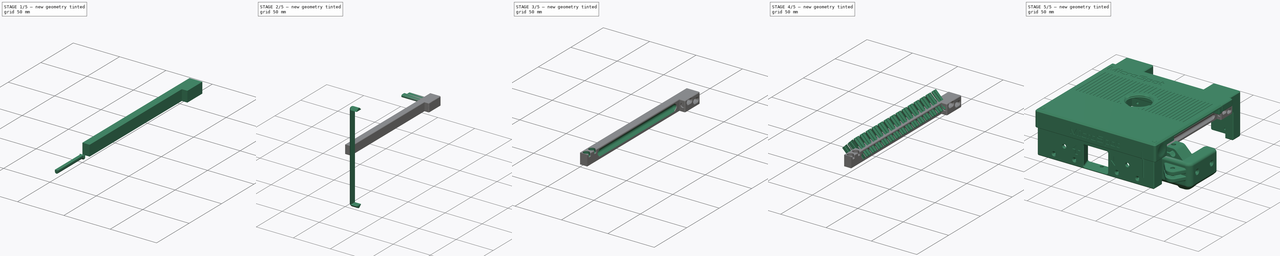
[diagram: build sequence overview — one tinted view per stage of 5, left to right]
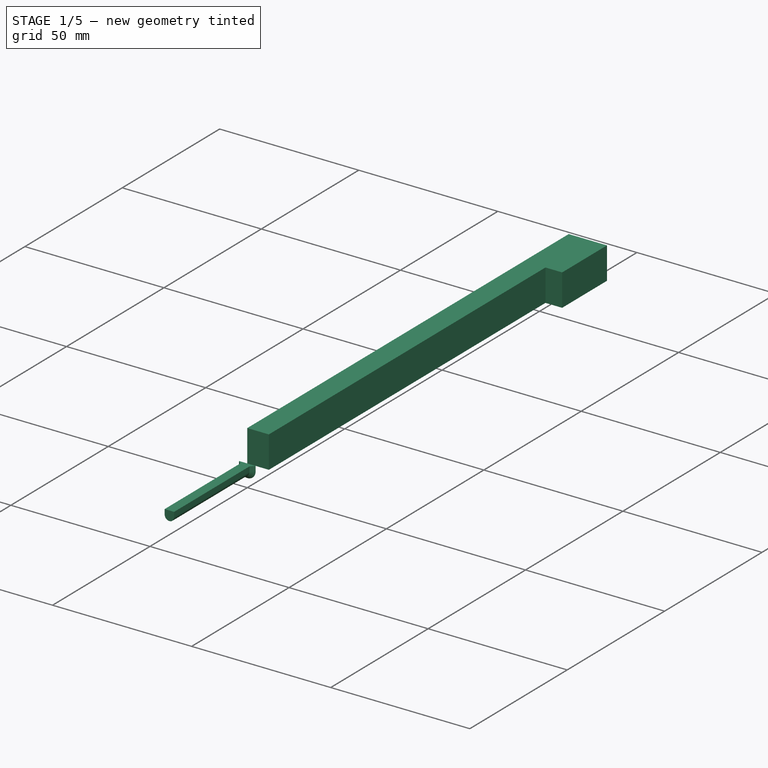
[diagram: stage 1 of 5 — iso view after this stage's code; geometry added in this stage tinted green]
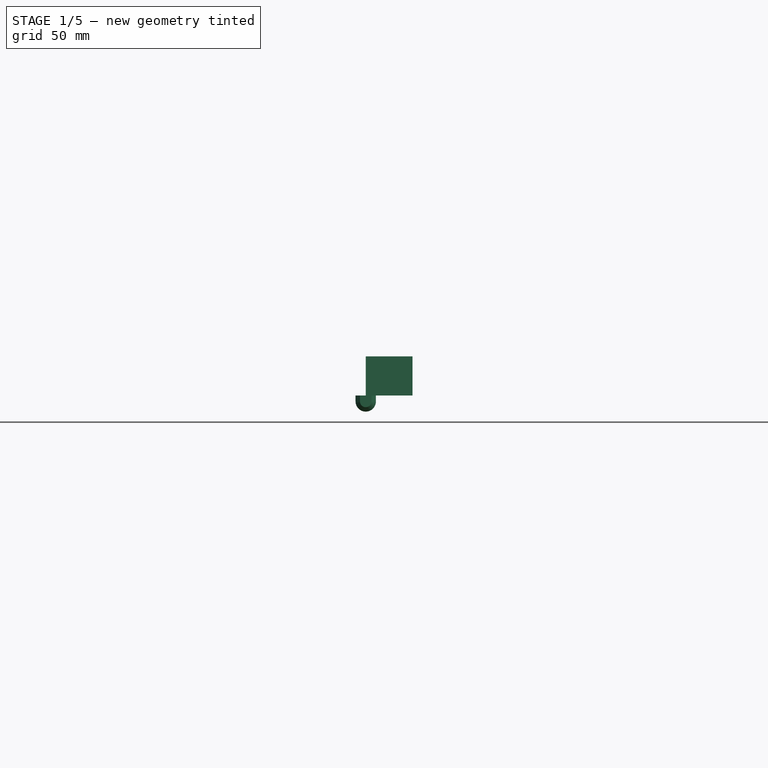
[diagram: stage 1 of 5 — front view after this stage's code; geometry added in this stage tinted green]
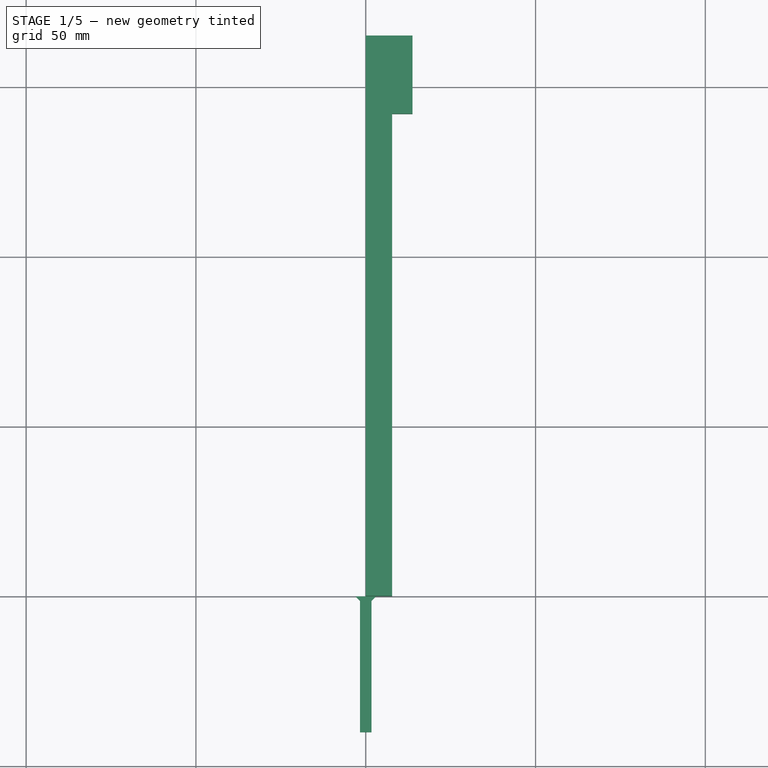
[diagram: stage 1 of 5 — top view after this stage's code; geometry added in this stage tinted green]
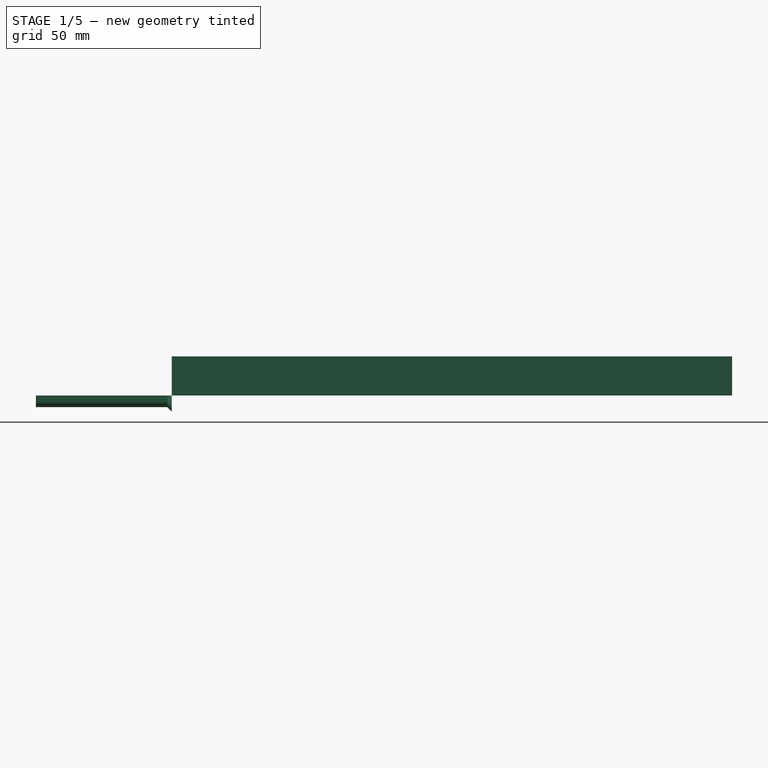
[diagram: stage 1 of 5 — right view after this stage's code; geometry added in this stage tinted green]
FCSTD DOCUMENT  (FreeCAD 0.16RUnknown)
Label: DrawerGuide
License: All rights reserved
LicenseURL: http://en.wikipedia.org/wiki/All_rights_reserved
objects: Part::FeaturePython×19, Sketcher::SketchObject×12, PartDesign::Pad×9, Part::Cut×7, App::DocumentObjectGroup×5, Part::Fillet×4, Part::Mirroring×4, Part::MultiFuse×4, PartDesign::Revolution×2, Spreadsheet::Sheet×1, Part::Sweep×1, Part::Box×1, Part::Compound×1, Part::MultiCommon×1, Part::Part2DObjectPython×1
note: 77 computed .brp shape members not serialized (recipe doc carries the construction recipe); baked Part::Feature solids carry a one-line shape summary decoded from their .brp

FEATURE [Sketcher::SketchObject] Sketch015  label="Base"
  Placement = pos=(0,0,0) rot=(0.57735,0.57735,0.57735;2.0944rad)
  expr: Constraints.RailLen = 166 - pars.ForwClear
  expr: Constraints.RailHeight = 12 - pars.UDSpace
  sketch-geometry (4):
    g0: LineSegment StartX=0 StartY=0 StartZ=0 EndX=0 EndY=11.5 EndZ=0
    g1: LineSegment StartX=0 StartY=11.5 StartZ=0 EndX=165 EndY=11.5 EndZ=0
    g2: LineSegment StartX=165 StartY=11.5 StartZ=0 EndX=165 EndY=0 EndZ=0
    g3: LineSegment StartX=165 StartY=0 StartZ=0 EndX=0 EndY=0 EndZ=0
  constraints (11):
    c: Coincident(g0,g1)
    c: Coincident(g2,g3)
    c: Coincident(g0,g3)
    c: Coincident(g0,g-1)
    c: Vertical(g0)
    c: Vertical(g2)
    c: Horizontal(g3)
    c: DistanceY(g0,g0) = 11.5
    c: DistanceX(g3,g3) = 165  'RailLen'
    c: Coincident(g1,g2)
    c: DistanceY(g2,g2) = 11.5  'RailHeight'
FEATURE [PartDesign::Pad] Pad007  label="Base001"
  Length = 7.75
  Length2 = 100
  Placement = pos=(0,0,0) rot=(0.57735,0.57735,0.57735;2.0944rad)
  Sketch = -> Sketch015
  Type = 0
  expr: Length = 8 - pars.RailClear
FEATURE [Sketcher::SketchObject] Sketch016  label="M3DIN7991SlotSection"
  expr: Constraints[11] = 1.5 + pars.PreBoltTol
  sketch-geometry (5):
    g0: LineSegment StartX=0 StartY=0 StartZ=0 EndX=3 EndY=0 EndZ=0
    g1: LineSegment StartX=3 StartY=0 StartZ=0 EndX=1.7 EndY=-1.3 EndZ=0
    g2: LineSegment StartX=1.7 StartY=-1.3 StartZ=0 EndX=1.7 EndY=-40 EndZ=0
    g3: LineSegment StartX=1.7 StartY=-40 StartZ=0 EndX=0 EndY=-40 EndZ=0
    g4: LineSegment StartX=0 StartY=-40 StartZ=0 EndX=0 EndY=0 EndZ=0
  constraints (14):
    c: Coincident(g0,g1)
    c: Coincident(g1,g2)
    c: Coincident(g2,g3)
    c: Coincident(g3,g4)
    c: Coincident(g0,g4)
    c: Coincident(g0,g-1)
    c: Vertical(g4)
    c: Vertical(g2)
    c: Horizontal(g0)
    c: Horizontal(g3)
    c: Angle(g0,g1) = 0.785398
    c: DistanceX(g3,g3) = 1.7
    c: DistanceX(g0,g0) = 3
    c: DistanceY(g4,g4) = 40
FEATURE [PartDesign::Pad] Pad008  label="M3DIN7991Slot"
  Length = 1.75
  Length2 = 100
  Sketch = -> Sketch016
  Type = 0
  expr: Length = pars.PreWidth / 2
FEATURE [Part::Part2DObjectPython] Clone2D  label="Clone of M3DIN7991SlotSection (2D)"  # Draft 2D object (typed FeaturePython)
  Objects = -> [Sketch016]
  Placement = pos=(0,0,1.75) rot=(0,0,1;0rad)
  Scale = (1,1,1)
  expr: Placement.Base.z = pars.PreWidth / 2
FEATURE [PartDesign::Revolution] Revolution001  label="M3DIN7991Slot001"
  Angle = 90
  Axis = (0,1,0)
  Base = (0,0,1.75)
  Placement = pos=(0,0,1.75) rot=(0,0,1;0rad)
  ReferenceAxis = -> Clone2D [V_Axis]
  Reversed = true
  Sketch = -> Clone2D
FEATURE [Part::MultiFuse] Fusion001  label="SlotQuarter"
  Shapes = -> [Pad008,Revolution001]
FEATURE [Part::Mirroring] Part__Mirroring002  label="SlotQuarter (Mirror #3)"
  Base = (0,0,0)
  Normal = (1,0,0)
  Source = -> Fusion001
FEATURE [Part::MultiFuse] Fusion002
  Shapes = -> [Fusion001,Part__Mirroring002]
FEATURE [Part::Mirroring] Part__Mirroring003  label="Fusion002 (Mirror #4)"
  Base = (0,0,0)
  Normal = (0,0,1)
  Source = -> Fusion002
FEATURE [Sketcher::SketchObject] Sketch  label="MagnetHolder"
  Placement = pos=(7.75,0,0) rot=(0.57735,0.57735,0.57735;2.0944rad)
  Support = -> Pad007 [Face6]
  expr: Constraints[10] = Base.Constraints.RailLen
  expr: Constraints[9] = Base.Constraints.RailHeight
  sketch-geometry (4):
    g0: LineSegment StartX=142 StartY=11.5 StartZ=0 EndX=165 EndY=11.5 EndZ=0
    g1: LineSegment StartX=165 StartY=11.5 StartZ=0 EndX=165 EndY=0 EndZ=0
    g2: LineSegment StartX=165 StartY=0 StartZ=0 EndX=142 EndY=0 EndZ=0
    g3: LineSegment StartX=142 StartY=0 StartZ=0 EndX=142 EndY=11.5 EndZ=0
  constraints (12):
    c: Coincident(g0,g1)
    c: Coincident(g1,g2)
    c: Coincident(g2,g3)
    c: Coincident(g3,g0)
    c: Horizontal(g0)
    c: Horizontal(g2)
    c: Vertical(g1)
    c: Vertical(g3)
    c: PointOnObject(g2,g-1)
    c: DistanceY(g1,g1) = 11.5
    c: DistanceX(g0) = 165
    c: DistanceX(g0) = 142
FEATURE [PartDesign::Pad] Pad  label="MagnetHolder001"
  Length = 6
  Length2 = 100
  Placement = pos=(0,0,0) rot=(0.57735,0.57735,0.57735;2.0944rad)
  Sketch = -> Sketch
  Type = 0
FEATURE [Part::FeaturePython] refine002  label="refine_MagnetHolder001"  # WARN: FeaturePython — macro-defined, semantics opaque (R4)
  Base = -> Pad
FEATURE [Sketcher::SketchObject] Sketch019  label="MagnetSlot"
  expr: Constraints[11] = pars.MagnetDia / 2
  sketch-geometry (4):
    g0: ArcOfCircle CenterX=0 CenterY=0 CenterZ=0 NormalX=0 NormalY=0 NormalZ=1 Radius=2.25 StartAngle=2.3562 EndAngle=7.06858
    g1: LineSegment StartX=-1.591 StartY=1.59098 StartZ=0 EndX=-0.931981 EndY=2.25 EndZ=0
    g2: LineSegment StartX=-0.931981 StartY=2.25 StartZ=0 EndX=0.931981 EndY=2.25 EndZ=0
    g3: LineSegment StartX=0.931981 StartY=2.25 StartZ=0 EndX=1.591 EndY=1.59098 EndZ=0
  constraints (12):
    c: Coincident(g1,g2)
    c: Coincident(g2,g3)
    c: Coincident(g1,g0)
    c: Coincident(g3,g0)
    c: Horizontal(g2)
    c: Perpendicular(g3,g1)
    c: Tangent(g3,g0)
    c: Tangent(g1,g0)
    c: Angle(g1,g2) = 2.35619
    c: Coincident(g0,g-1)
    c: Tangent(g0,g2)
    c: Radius(g0) = 2.25
FEATURE [PartDesign::Pad] Pad009  label="MagnetSlot001"
  Length = 1.4
  Length2 = 100
  Sketch = -> Sketch019
  Type = 0
  expr: Length = pars.MagTol + 1
FEATURE [App::DocumentObjectGroup] Group002  label="Component_src"
  Group = -> [Revolution,Pad001,Pad002,Pad003,Pad006,Fusion003,refine001,Pad009]
FEATURE [Part::FeaturePython] Clone017  label="Clone of MagnetSlot001"  # Draft clone (typed FeaturePython)
  Objects = -> [Pad009]
  Placement = pos=(11,142,6) rot=(0,0.707107,0.707107;3.14159rad)
  Scale = (1,1,1)
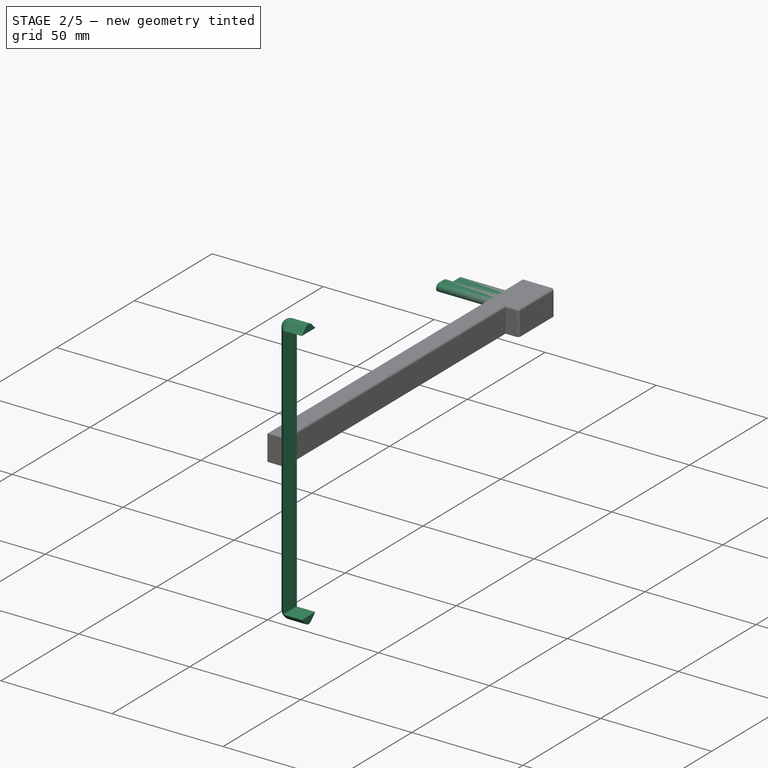
[diagram: stage 2 of 5 — iso view after this stage's code; geometry added in this stage tinted green]
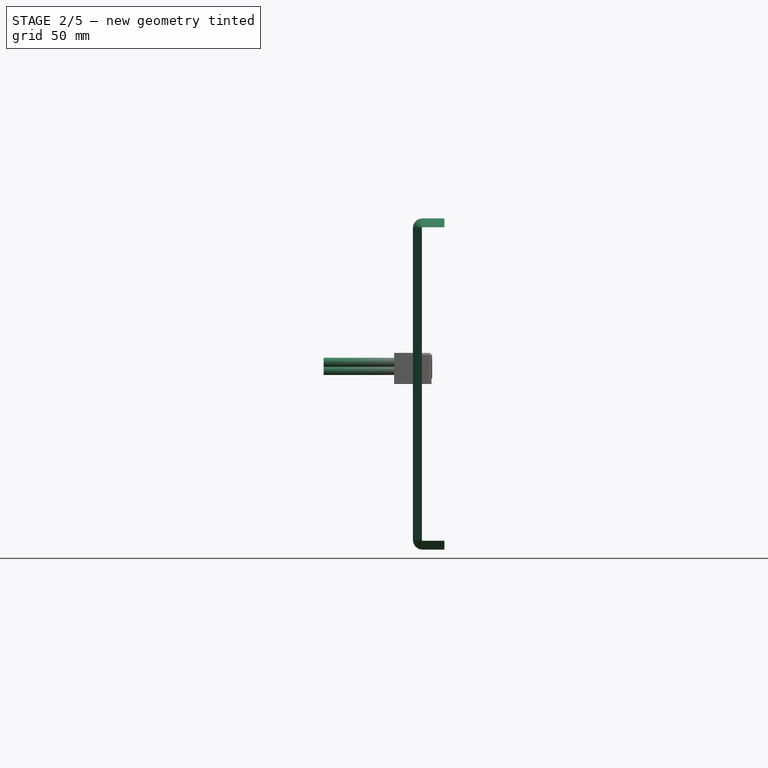
[diagram: stage 2 of 5 — front view after this stage's code; geometry added in this stage tinted green]
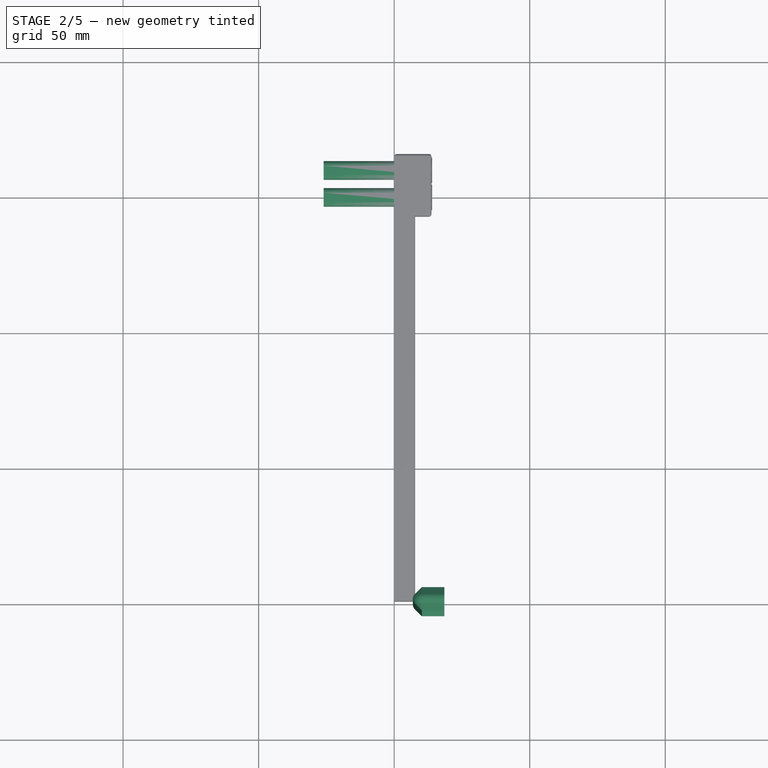
[diagram: stage 2 of 5 — top view after this stage's code; geometry added in this stage tinted green]
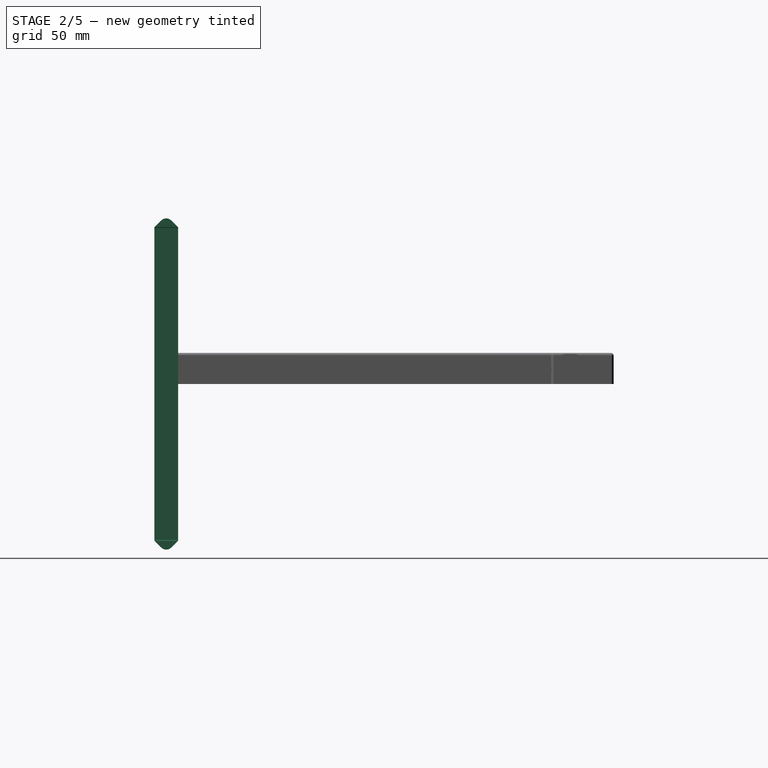
[diagram: stage 2 of 5 — right view after this stage's code; geometry added in this stage tinted green]
FEATURE [Sketcher::SketchObject] Sketch005  label="RailPath"
  Placement = pos=(0,0,0) rot=(1,0,0;1.5708rad)
  expr: Constraints[9] = pars.RailLen / 2
  sketch-geometry (3):
    g0: LineSegment StartX=6.5 StartY=0 StartZ=0 EndX=6.5 EndY=57.5 EndZ=0
    g1: ArcOfCircle CenterX=10.5 CenterY=57.5 CenterZ=0 NormalX=0 NormalY=0 NormalZ=1 Radius=4 StartAngle=1.5708 EndAngle=3.1416
    g2: LineSegment StartX=10.5 StartY=61.5 StartZ=0 EndX=18.5 EndY=61.5 EndZ=0
  constraints (11):
    c: Coincident(g1,g0)
    c: Tangent(g1,g0)
    c: Vertical(g0)
    c: PointOnObject(g0,g-1)
    c: Horizontal(g2)
    c: Coincident(g2,g1)
    c: Tangent(g2,g1)
    c: DistanceX(g1) = 10.5
    c: DistanceX(g2,g2) = 8
    c: DistanceY(g0,g0) = 57.5
    c: Radius(g1) = 4
FEATURE [Sketcher::SketchObject] Sketch011  label="RailSection"
  expr: Constraints[6] = pars.BallShapeTol + 3
  sketch-geometry (4):
    g0: Circle [constr] CenterX=10 CenterY=-2.5e-11 CenterZ=0 NormalX=0 NormalY=0 NormalZ=1 Radius=2.946
    g1: LineSegment StartX=10.2 StartY=4.36627 StartZ=0 EndX=5.83373 EndY=0 EndZ=0
    g2: LineSegment StartX=5.83373 StartY=0 StartZ=0 EndX=10.2 EndY=-4.36627 EndZ=0
    g3: LineSegment StartX=10.2 StartY=-4.36627 StartZ=0 EndX=10.2 EndY=4.36627 EndZ=0
  constraints (12):
    c: Coincident(g1,g2)
    c: Coincident(g2,g3)
    c: Coincident(g1,g3)
    c: Vertical(g3)
    c: Perpendicular(g2,g1)
    c: Angle(g1) = -2.35619
    c: Radius(g0) = 2.946
    c: Tangent(g1,g0)
    c: Tangent(g0,g2)
    c: DistanceX(g0) = 10
    c: DistanceX(g1) = 10.2
    c: PointOnObject(g1,g-1)
FEATURE [Part::Sweep] Sweep  label="RailSweep"
  Frenet = false
  Sections = -> [Sketch011]
  Solid = true
  Spine = -> Sketch005 [Edge1,Edge2,Edge3]
  Transition = 1
FEATURE [Part::Fillet] Fillet003  label="RailFillet"
  Base = -> Sweep
  Edges = 1 edges r=2.6: [Edge17]
FEATURE [Part::Mirroring] Part__Mirroring  label="RailFillet (Mirror #1)"
  Base = (0,0,0)
  Normal = (0,0,1)
  Source = -> Fillet003
FEATURE [Part::MultiFuse] Fusion  label="GuideMirror"
  Shapes = -> [Part__Mirroring,Fillet003]
FEATURE [Part::FeaturePython] refine  label="Guide"  # WARN: FeaturePython — macro-defined, semantics opaque (R4)
  Base = -> Fusion
FEATURE [Part::MultiFuse] Fusion003  label="M3DIN7991BoltSlot"
  Shapes = -> [Fusion002,Part__Mirroring003]
FEATURE [Part::FeaturePython] refine001  label="refine_M3DIN7991BoltSlot"  # WARN: FeaturePython — macro-defined, semantics opaque (R4)
  Base = -> Fusion003
FEATURE [Part::FeaturePython] Clone014  label="Clone of refine_M3DIN7991BoltSlot"  # Draft clone (typed FeaturePython)
  Objects = -> [refine001]
  Placement = pos=(14,159,5) rot=(0.57735,0.57735,-0.57735;2.0944rad)
  Scale = (1,1,1)
FEATURE [Part::FeaturePython] Clone015  label="Clone of refine_M3DIN7991BoltSlot001"  # Draft clone (typed FeaturePython)
  Objects = -> [refine001]
  Placement = pos=(14,149,8) rot=(0.57735,0.57735,-0.57735;2.0944rad)
  Scale = (1,1,1)
FEATURE [Part::Fillet] Fillet  label="RailFillet001"
  Base = -> refine002
  Edges = 7 edges r=1: [Edge6,Edge10,Edge12,Edge13,Edge14,Edge15,Edge18]
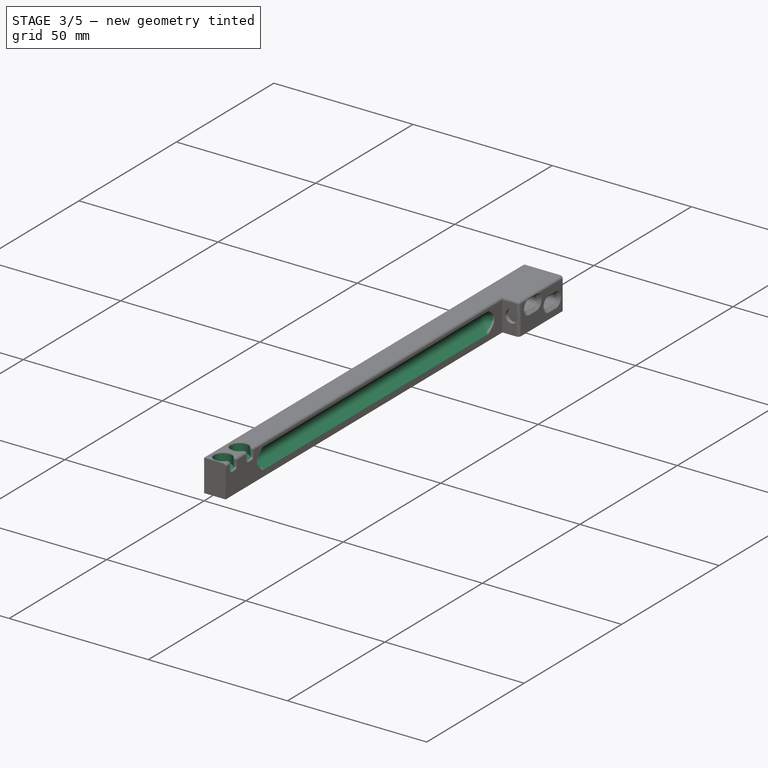
[diagram: stage 3 of 5 — iso view after this stage's code; geometry added in this stage tinted green]
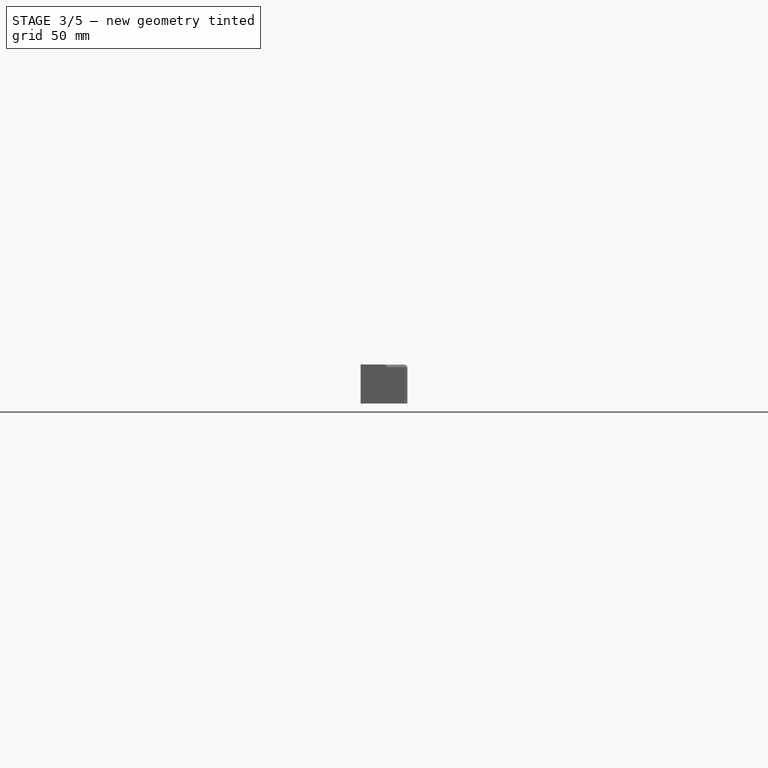
[diagram: stage 3 of 5 — front view after this stage's code; geometry added in this stage tinted green]
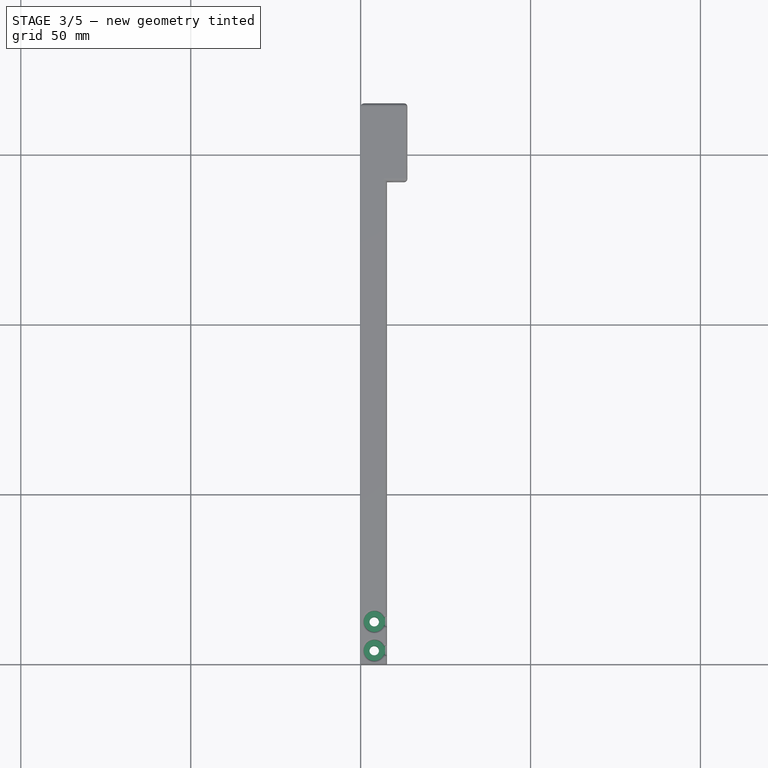
[diagram: stage 3 of 5 — top view after this stage's code; geometry added in this stage tinted green]
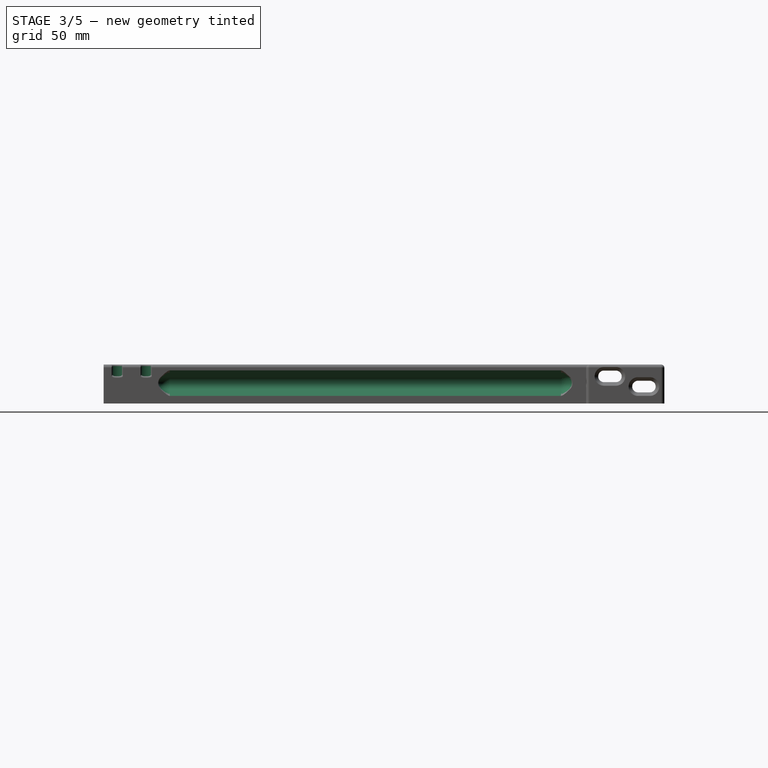
[diagram: stage 3 of 5 — right view after this stage's code; geometry added in this stage tinted green]
FEATURE [Sketcher::SketchObject] Sketch001  label="DIN912M3Bolt"
  expr: Constraints[15] = 3 + pars.CilLoose
  expr: Constraints[14] = 1.5 - pars.CilTight
  sketch-geometry (6):
    g0: LineSegment StartX=0 StartY=4 StartZ=0 EndX=3.1 EndY=4 EndZ=0
    g1: LineSegment StartX=3.1 StartY=4 StartZ=0 EndX=3.1 EndY=0 EndZ=0
    g2: LineSegment StartX=3.1 StartY=0 StartZ=0 EndX=1.4 EndY=0 EndZ=0
    g3: LineSegment StartX=1.4 StartY=0 StartZ=0 EndX=1.4 EndY=-20 EndZ=0
    g4: LineSegment StartX=1.4 StartY=-20 StartZ=0 EndX=0 EndY=-20 EndZ=0
    g5: LineSegment StartX=0 StartY=-20 StartZ=0 EndX=0 EndY=4 EndZ=0
  constraints (18):
    c: Coincident(g0,g1)
    c: Coincident(g1,g2)
    c: Coincident(g2,g3)
    c: Coincident(g3,g4)
    c: Coincident(g4,g5)
    c: Coincident(g0,g5)
    c: Vertical(g5)
    c: Vertical(g1)
    c: Vertical(g3)
    c: Horizontal(g0)
    c: Horizontal(g2)
    c: Horizontal(g4)
    c: PointOnObject(g0,g-2)
    c: PointOnObject(g2,g-1)
    c: DistanceX(g4,g4) = 1.4
    c: DistanceX(g0,g0) = 3.1
    c: DistanceY(g1,g1) = 4
    c: DistanceY(g3,g3) = 20
FEATURE [PartDesign::Revolution] Revolution  label="DIN912M3Bolt001"
  Angle = 360
  Axis = (0,1,0)
  Base = (0,0,0)
  ReferenceAxis = -> Sketch001 [V_Axis]
  Reversed = true
  Sketch = -> Sketch001
FEATURE [Part::FeaturePython] Clone  label="Clone of DIN912M3Bolt001"  # Draft clone (typed FeaturePython)
  Objects = -> [Revolution]
  Placement = pos=(4,4,8) rot=(1,0,0;1.5708rad)
  Scale = (1,1,1)
FEATURE [Part::FeaturePython] Clone001  label="Clone of DIN912M3Bolt002"  # Draft clone (typed FeaturePython)
  Objects = -> [Revolution]
  Placement = pos=(4,12.5,8) rot=(1,0,0;1.5708rad)
  Scale = (1,1,1)
FEATURE [App::DocumentObjectGroup] Group003  label="Guide_src"
  Group = -> [refine,Sketch005]
FEATURE [Part::FeaturePython] Clone007  label="Clone of Guide"  # Draft clone (typed FeaturePython)
  Objects = -> [refine]
  Placement = pos=(-1.835,77,6) rot=(1,0,0;1.5708rad)
  Scale = (1,1,1)
  expr: Placement.Base.x = -2 + pars.GuideTight
FEATURE [Part::Cut] Cut  label="GuideCut"
  Base = -> Fillet
  Tool = -> Clone007
FEATURE [Part::Cut] Cut001
  Base = -> Cut
  Tool = -> Clone
FEATURE [Part::Cut] Cut002
  Base = -> Cut001
  Tool = -> Clone001
FEATURE [Part::Fillet] Fillet004  label="FrontBoltsFillet"
  Base = -> Cut002
  Edges = 2 edges r=0.5: [Edge18,Edge20]
FEATURE [Part::Cut] Cut003
  Base = -> Fillet004
  Tool = -> Clone014
FEATURE [Part::Cut] Cut004  label="BackBoltCut"
  Base = -> Cut003
  Tool = -> Clone015
FEATURE [Part::Cut] Cut006  label="MagnetCut"
  Base = -> Cut004
  Tool = -> Clone017
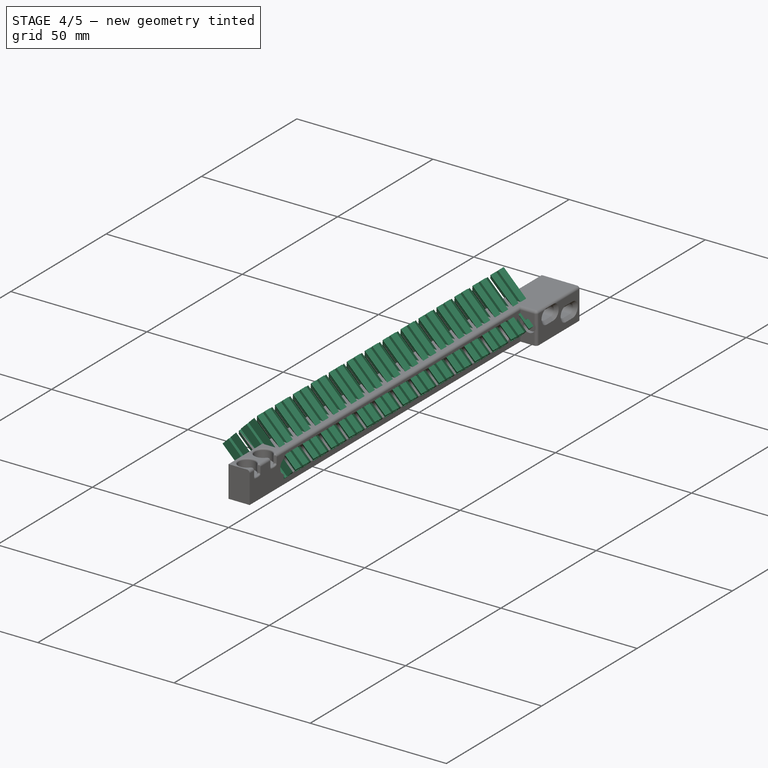
[diagram: stage 4 of 5 — iso view after this stage's code; geometry added in this stage tinted green]
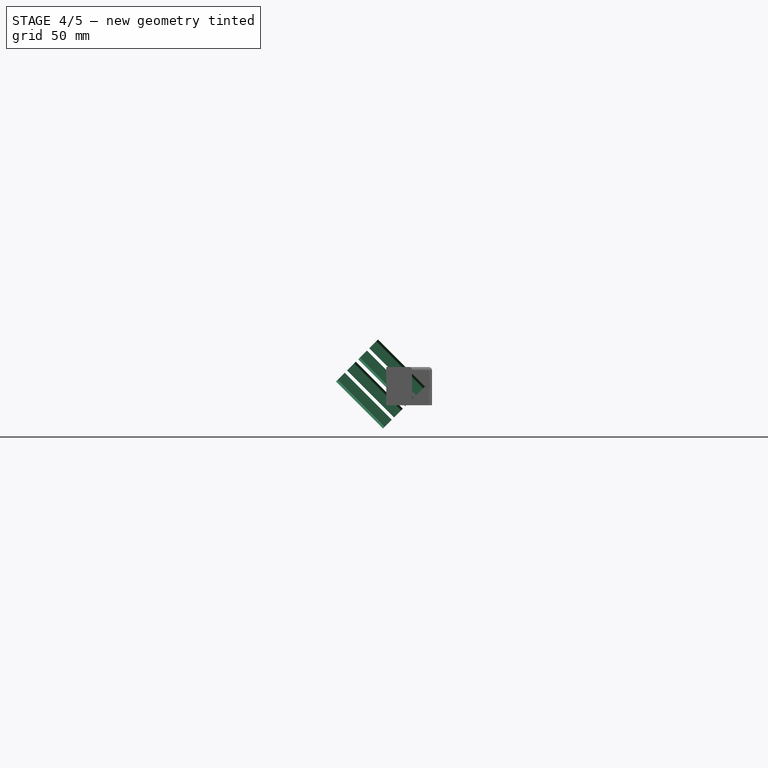
[diagram: stage 4 of 5 — front view after this stage's code; geometry added in this stage tinted green]
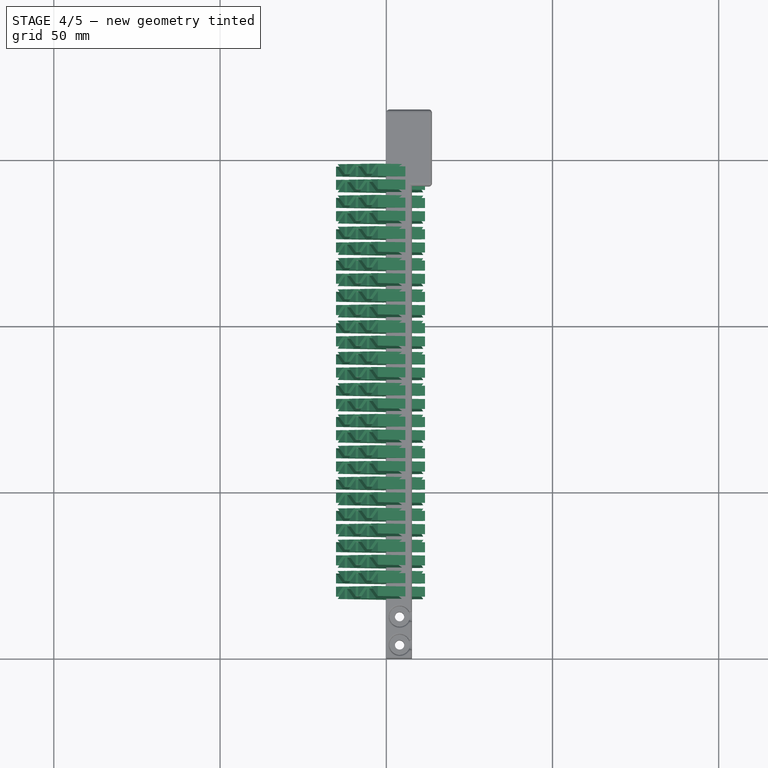
[diagram: stage 4 of 5 — top view after this stage's code; geometry added in this stage tinted green]
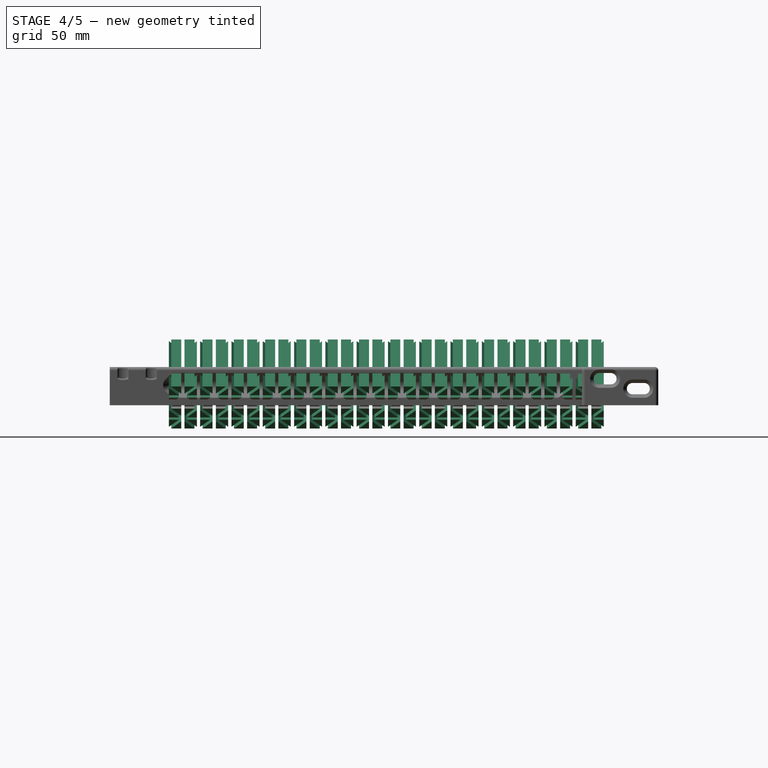
[diagram: stage 4 of 5 — right view after this stage's code; geometry added in this stage tinted green]
FEATURE [Part::Box] Box  label="MRFillet001"
  Height = 8
  Length = 3
  Placement = pos=(0,18,2) rot=(0,0,1;0rad)
  Width = 124
FEATURE [Part::Fillet] Fillet005  label="MRDFillet"
  Base = -> Box
  Edges = 4 edges r=2: [Edge9,Edge10,Edge11,Edge12]
FEATURE [Sketcher::SketchObject] Sketch012  label="MRTriangle"
  expr: Constraints[12] = pars.MRWallWidth / 2
  expr: Constraints[7] = pars.MRWallWidth / 2
  expr: Constraints[6] = pars.MRTriSide
  sketch-geometry (5):
    g0: LineSegment StartX=1.20711 StartY=0.5 StartZ=0 EndX=4.20711 EndY=3.5 EndZ=0
    g1: LineSegment StartX=4.20711 StartY=3.5 StartZ=0 EndX=4.20711 EndY=0.5 EndZ=0
    g2: LineSegment StartX=4.20711 StartY=0.5 StartZ=0 EndX=1.20711 EndY=0.5 EndZ=0
    g3: LineSegment [constr] StartX=0 StartY=0 StartZ=0 EndX=0.853553 EndY=0.853553 EndZ=0
    g4: LineSegment [constr] StartX=1.20711 StartY=0.5 StartZ=0 EndX=0.853553 EndY=0.853553 EndZ=0
  constraints (14):
    c: Coincident(g0,g1)
    c: Coincident(g1,g2)
    c: Coincident(g0,g2)
    c: Horizontal(g2)
    c: Vertical(g1)
    c: Angle(g2,g0) = 0.785398
    c: DistanceX(g2,g2) = 3
    c: DistanceY(g0) = 0.5
    c: Coincident(g4,g3)
    c: Parallel(g3,g0)
    c: Perpendicular(g0,g4)
    c: Coincident(g4,g0)
    c: Distance(g4) = 0.5
    c: Coincident(g3,g-1)
FEATURE [PartDesign::Pad] Pad004  label="MRTriangle001"
  Length = 20
  Length2 = 100
  Sketch = -> Sketch012
  Type = 0
FEATURE [Part::FeaturePython] Array  label="PolarPattern"  # Draft array (typed FeaturePython)
  Angle = 360
  ArrayType = 1
  Axis = (0,0,1)
  Base = -> Pad004
  Center = (0,0,0)
  Fuse = false
  IntervalAxis = (0,0,0)
  IntervalX = (1,0,0)
  IntervalY = (0,1,0)
  IntervalZ = (0,0,0)
  NumberPolar = 4
  NumberX = 2
  NumberY = 2
  NumberZ = 1
FEATURE [Part::Mirroring] Part__Mirroring001  label="PolarPattern (Mirror #2)"
  Base = (0,0,0)
  Normal = (1,0,0)
  Source = -> Array
FEATURE [Part::Compound] Compound  label="Cell"
  Links = -> [Part__Mirroring001,Array]
FEATURE [Part::FeaturePython] Clone008  label="Clone of Cell"  # Draft clone (typed FeaturePython)
  Objects = -> [Compound]
  Scale = (1,1,1)
FEATURE [Part::FeaturePython] Array001  label="MRPattern"  # Draft array (typed FeaturePython)
  Angle = 360
  ArrayType = 0
  Axis = (0,0,1)
  Base = -> Clone008
  Center = (0,0,0)
  Fuse = false
  IntervalAxis = (0,0,0)
  IntervalX = (9.41421,0,0)
  IntervalY = (0,9.41421,0)
  IntervalZ = (0,0,0)
  NumberPolar = 1
  NumberX = 2
  NumberY = 14
  NumberZ = 1
  Placement = pos=(2,22,-4) rot=(0,-1,0;0.785398rad)
  expr: NumberY = 1 + ceil(pars.RailLen / (pars.MRTriSide + pars.MRWallWidth * (1 + sin(45))) / 2)
  expr: IntervalY.y = 2 * (pars.MRTriSide + pars.MRWallWidth * (1 + sin(45)))
  expr: IntervalX.x = 2 * (pars.MRTriSide + pars.MRWallWidth * (1 + sin(45)))
FEATURE [App::DocumentObjectGroup] Group004  label="MR_src"
  Group = -> [Fillet005,Pad004,Array,Compound,Array001]
FEATURE [Part::FeaturePython] Clone009  label="Clone of MRTool"  # Draft clone (typed FeaturePython)
  Objects = -> [Array001]
  Placement = pos=(2,22,-4) rot=(0,-1,0;0.785398rad)
  Scale = (1,1,1)
FEATURE [Part::FeaturePython] Clone010  label="Clone of MRDFillet"  # Draft clone (typed FeaturePython)
  Objects = -> [Fillet005]
  Scale = (1,1,1)
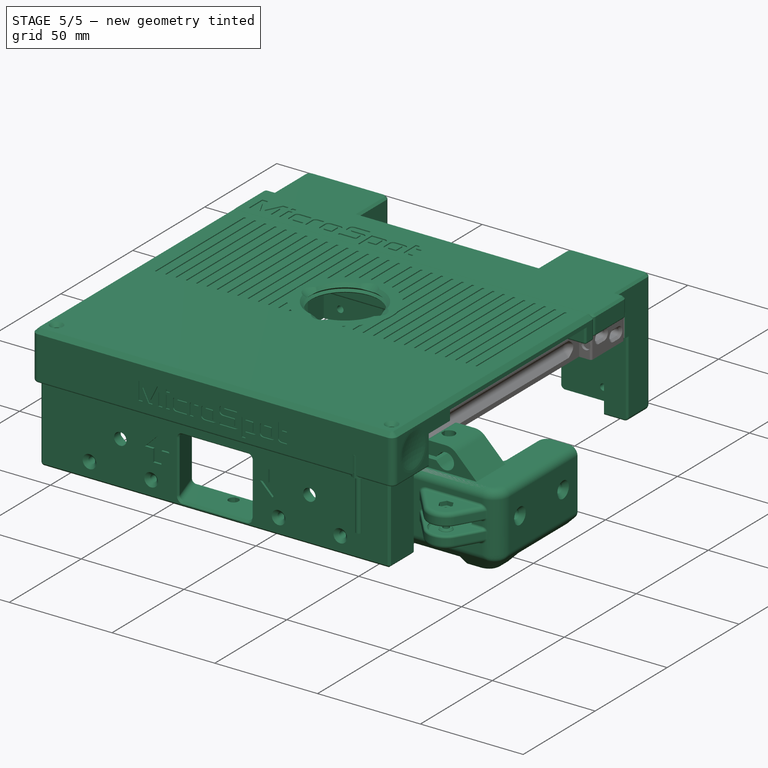
[diagram: stage 5 of 5 — iso view after this stage's code; geometry added in this stage tinted green]
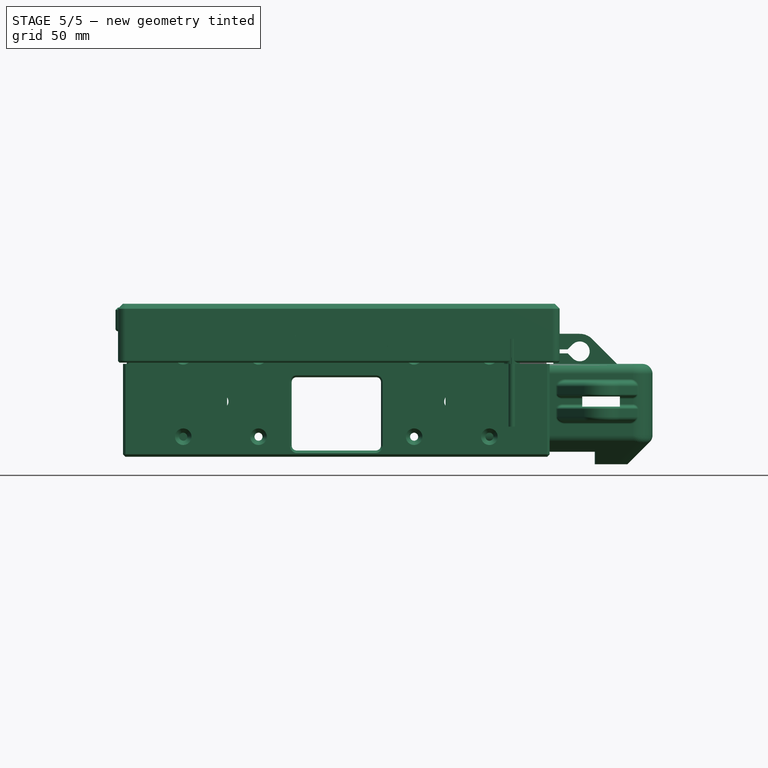
[diagram: stage 5 of 5 — front view after this stage's code; geometry added in this stage tinted green]
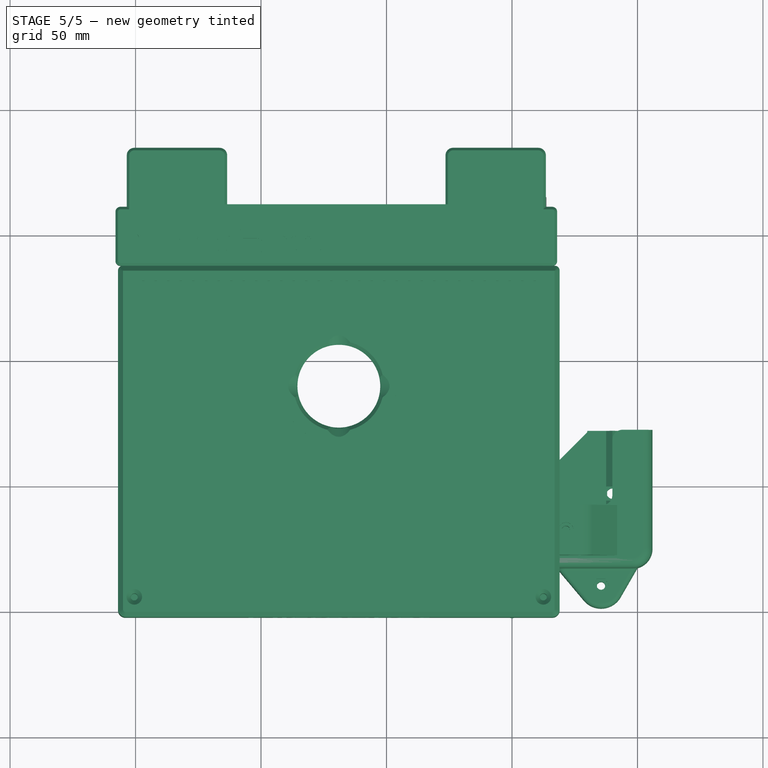
[diagram: stage 5 of 5 — top view after this stage's code; geometry added in this stage tinted green]
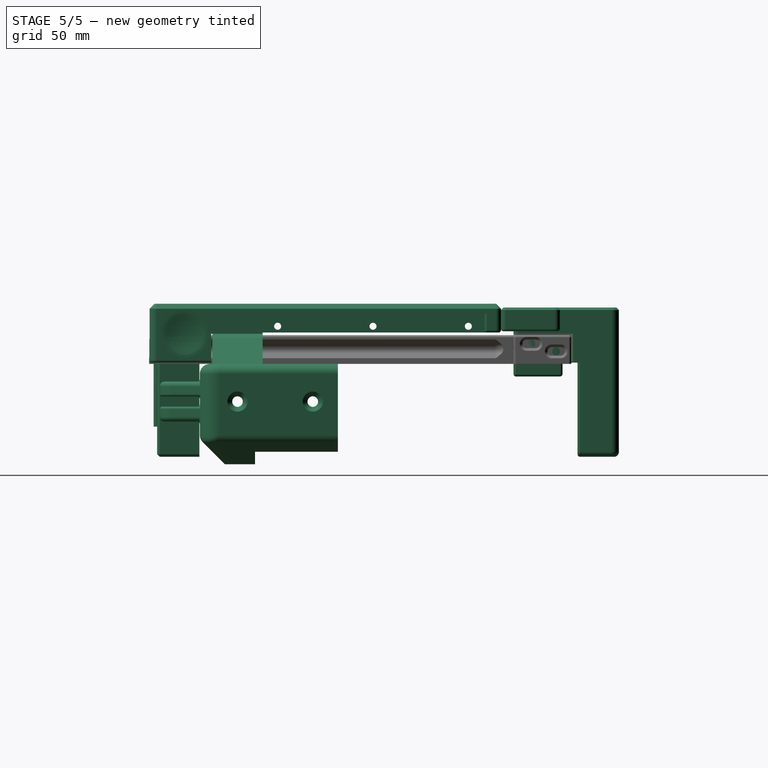
[diagram: stage 5 of 5 — right view after this stage's code; geometry added in this stage tinted green]
FEATURE [Spreadsheet::Sheet] Spreadsheet  label="pars"
  cells = A1=Bolts and Nuts; B1=Value; D1=Components; E1=Value; A2=Thread Tight Tolerance (Radius, ratio); B2(ThrTighRatio)=0.96; D2=Tight Cilinder Tolerances (Radius, mm); E2(CilTight)=0.1; A3=Thread Tight Tolerance (Radius, mm); B3(ThrTightmm)=0.1; D3=Loose Cilinder Tolerances (Radius, mm); E3(CilLoose)=0.1; A5=Nut Slot Width Clearance (mm); B5(NutWidthClearmm)=0.1; A6=Nut Slot Thickess Clearance (mm); B6(NutThickClearmm)=0.1; A13=Particular parameters; B13=Value; A14=Rail Lenght (center to center); B14(RailLen)=115; A15=Ball Shape Tolerance; B15(BallShapeTol)=-0.054; A16=Rail Clearance; B16(RailClear)=0.25; A17=Guide Tightness; B17(GuideTight)=0.165; A18=Material Reduction Wall Width; B18(MRWallWidth)=1; A19=Material Reduction Triangle Side (Cathetus); B19(MRTriSide)=3; A20=Upper Drawer Space; B20(UDSpace)=0.5; A21=Preload Slot width; B21(PreWidth)=3.5; A22=Magnet Diameter; B22(MagnetDia)=4.5; A23=Magnet Tolerance; B23(MagTol)=0.4; A24=Preload Slot Bolt Tolerance; B24(PreBoltTol)=0.2; A25=Forward Clearance; B25(ForwClear)=1
FEATURE [Part::FeaturePython] FrontCrane_01  label="FrontCrane"  # a2plus imported part (geometry in sourceFile) (typed FeaturePython)
  Placement = pos=(-70,17,-15) rot=(0,0,1;0rad)
  fixedPosition = true
  sourceFile = ./FrontCrane.fcstd
  timeLastImport = 1.52166e+09
  updateColors = true
FEATURE [Part::FeaturePython] FrontCorner_01  label="FrontCorner"  # a2plus imported part (geometry in sourceFile) (typed FeaturePython)
  Placement = pos=(40,10,-15) rot=(0,0,1;0rad)
  fixedPosition = false
  sourceFile = ./../../MainFrame/FrontCorner.fcstd
  timeLastImport = 1.52267e+09
  updateColors = true
FEATURE [Sketcher::SketchObject] Sketch002  label="DIN912PrintM3Thread"
  expr: Constraints[11] = 1.5 - pars.CilTight
  sketch-geometry (4):
    g0: ArcOfCircle CenterX=0 CenterY=0 CenterZ=0 NormalX=0 NormalY=0 NormalZ=1 Radius=1.4 StartAngle=2.3562 EndAngle=7.06858
    g1: LineSegment StartX=-0.98995 StartY=0.989949 StartZ=0 EndX=-0.579899 EndY=1.4 EndZ=0
    g2: LineSegment StartX=-0.579899 StartY=1.4 StartZ=0 EndX=0.579899 EndY=1.4 EndZ=0
    g3: LineSegment StartX=0.579899 StartY=1.4 StartZ=0 EndX=0.989954 EndY=0.989945 EndZ=0
  constraints (12):
    c: Coincident(g1,g2)
    c: Coincident(g2,g3)
    c: Coincident(g1,g0)
    c: Coincident(g3,g0)
    c: Horizontal(g2)
    c: Perpendicular(g3,g1)
    c: Tangent(g3,g0)
    c: Tangent(g1,g0)
    c: Angle(g1,g2) = 2.35619
    c: Coincident(g0,g-1)
    c: Tangent(g0,g2)
    c: Radius(g0) = 1.4
FEATURE [PartDesign::Pad] Pad001  label="DIN912PrintM3Thread001"
  Length = 25
  Length2 = 100
  Reversed = true
  Sketch = -> Sketch002
  Type = 0
FEATURE [Sketcher::SketchObject] Sketch003  label="DIN912PrintM3Head"
  Support = -> Pad001 [Face5]
  expr: Constraints[11] = 3 + pars.CilLoose
  sketch-geometry (4):
    g0: ArcOfCircle CenterX=0 CenterY=0 CenterZ=0 NormalX=0 NormalY=0 NormalZ=1 Radius=3.1 StartAngle=2.35619 EndAngle=7.06859
    g1: LineSegment StartX=-2.19202 StartY=2.19204 StartZ=0 EndX=-1.28406 EndY=3.1 EndZ=0
    g2: LineSegment StartX=-1.28406 StartY=3.1 StartZ=0 EndX=1.28406 EndY=3.1 EndZ=0
    g3: LineSegment StartX=1.28406 StartY=3.1 StartZ=0 EndX=2.19203 EndY=2.19204 EndZ=0
  constraints (12):
    c: Coincident(g1,g2)
    c: Coincident(g2,g3)
    c: Coincident(g1,g0)
    c: Coincident(g3,g0)
    c: Horizontal(g2)
    c: Perpendicular(g3,g1)
    c: Tangent(g3,g0)
    c: Tangent(g1,g0)
    c: Angle(g1,g2) = 2.35619
    c: Coincident(g0,g-1)
    c: Tangent(g0,g2)
    c: Radius(g0) = 3.1
FEATURE [PartDesign::Pad] Pad002  label="DIN912PrintM3Head001"
  Length = 10
  Length2 = 100
  Sketch = -> Sketch003
  Type = 0
FEATURE [Sketcher::SketchObject] Sketch004  label="DIN934Nut"
  expr: Constraints[19] = pars.NutWidthClearmm + 5.5
  sketch-geometry (7):
    g0: LineSegment StartX=2.8 StartY=-1.61658 StartZ=0 EndX=2.8 EndY=1.61658 EndZ=0
    g1: LineSegment StartX=2.8 StartY=1.61658 StartZ=0 EndX=0 EndY=3.23316 EndZ=0
    g2: LineSegment StartX=0 StartY=3.23316 StartZ=0 EndX=-2.8 EndY=1.61658 EndZ=0
    g3: LineSegment StartX=-2.8 StartY=1.61658 StartZ=0 EndX=-2.8 EndY=-1.61658 EndZ=0
    g4: LineSegment StartX=-2.8 StartY=-1.61658 StartZ=0 EndX=0 EndY=-3.23316 EndZ=0
    g5: LineSegment StartX=0 StartY=-3.23316 StartZ=0 EndX=2.8 EndY=-1.61658 EndZ=0
    g6: Circle [constr] CenterX=0 CenterY=0 CenterZ=0 NormalX=0 NormalY=0 NormalZ=1 Radius=3.23316
  constraints (16):
    c: Coincident(g0,g1)
    c: Coincident(g1,g2)
    c: Coincident(g2,g3)
    c: Coincident(g3,g4)
    c: Coincident(g4,g5)
    c: Coincident(g5,g0)
    c: Equal(g0, g1-g5) x5
    c: PointOnObject(g0,g6)
    c: PointOnObject(g1,g6)
    c: PointOnObject(g2,g6)
    c: PointOnObject(g3,g6)
    c: PointOnObject(g4,g6)
    c: PointOnObject(g5,g6)
    c: Coincident(g6,g-1)
    c: Vertical(g3)
    c: DistanceX(g2,g0) = 5.6
FEATURE [PartDesign::Pad] Pad003  label="DIN934Nut001"
  Length = 2.5
  Length2 = 100
  Sketch = -> Sketch004
  Type = 0
  expr: Length = pars.NutThickClearmm + 2.4
FEATURE [Part::FeaturePython] UpperBackCover_01  label="UpperBackCover"  # a2plus imported part (geometry in sourceFile) (typed FeaturePython)
  Placement = pos=(-70,152,21) rot=(0,0,1;0rad)
  fixedPosition = false
  sourceFile = ./UpperBackCover.fcstd
  timeLastImport = 1.53202e+09
  updateColors = true
FEATURE [Part::MultiCommon] Common  label="MRTool"
  Shapes = -> [Clone009,Clone010]
FEATURE [Part::FeaturePython] UpperCover_01  label="UpperCover"  # a2plus imported part (geometry in sourceFile) (typed FeaturePython)
  Placement = pos=(-69,89,20) rot=(0,0,1;0rad)
  fixedPosition = false
  sourceFile = ./../../UpperLid/UpperCover.fcstd
  timeLastImport = 1.53201e+09
  updateColors = true
FEATURE [App::DocumentObjectGroup] Group  label="Reference"
  Group = -> [FrontCrane_01,FrontCorner_01,UpperBackCover_01,UpperCover_01]
FEATURE [Sketcher::SketchObject] Sketch014  label="M3DIN912PrintSlot"
  expr: Constraints[18] = pars.PreWidth
  expr: Constraints[17] = -pars.CilTight + 1.5
  sketch-geometry (6):
    g0: LineSegment StartX=-2.73995 StartY=0.989952 StartZ=0 EndX=-2.3299 EndY=1.4 EndZ=0
    g1: LineSegment StartX=-2.3299 StartY=1.4 StartZ=0 EndX=2.3299 EndY=1.4 EndZ=0
    g2: LineSegment StartX=2.3299 StartY=1.4 StartZ=0 EndX=2.73995 EndY=0.989952 EndZ=0
    g3: LineSegment StartX=-1.74999 StartY=-1.4 StartZ=0 EndX=1.74999 EndY=-1.4 EndZ=0
    g4: ArcOfCircle CenterX=-1.75 CenterY=0 CenterZ=0 NormalX=0 NormalY=0 NormalZ=1 Radius=1.4 StartAngle=2.35619 EndAngle=4.7124
    g5: ArcOfCircle CenterX=1.75 CenterY=0 CenterZ=0 NormalX=0 NormalY=0 NormalZ=1 Radius=1.4 StartAngle=4.71238 EndAngle=7.06859
  constraints (19):
    c: Coincident(g0,g1)
    c: Coincident(g1,g2)
    c: Coincident(g3,g4)
    c: Coincident(g3,g5)
    c: Coincident(g2,g5)
    c: Coincident(g0,g4)
    c: Tangent(g4,g3)
    c: Tangent(g4,g0)
    c: Tangent(g4,g1)
    c: Tangent(g2,g5)
    c: Tangent(g3,g5)
    c: PointOnObject(g4,g-1)
    c: PointOnObject(g5,g-1)
    c: Perpendicular(g2,g0)
    c: Horizontal(g3)
    c: Angle(g1,g2) = 2.35619
    c: Symmetric(g0,g1,g-2)
    c: Radius(g4) = 1.4
    c: DistanceX(g4,g5) = 3.5
FEATURE [PartDesign::Pad] Pad006  label="M3DIN912PrintSlot001"
  Length = 20
  Length2 = 100
  Sketch = -> Sketch014
  Type = 0
FEATURE [Part::Cut] Cut005  label="MaterialReduction"
  Base = -> Cut006
  Tool = -> Common
FEATURE [App::DocumentObjectGroup] Group001  label="src"
  Group = -> [Cut002,Cut005,refine002,Pad007]
FEATURE [Part::FeaturePython] Clone016  label="DrawerGuide"  # Draft clone (typed FeaturePython)
  Objects = -> [Cut005]
  Scale = (1,1,1)
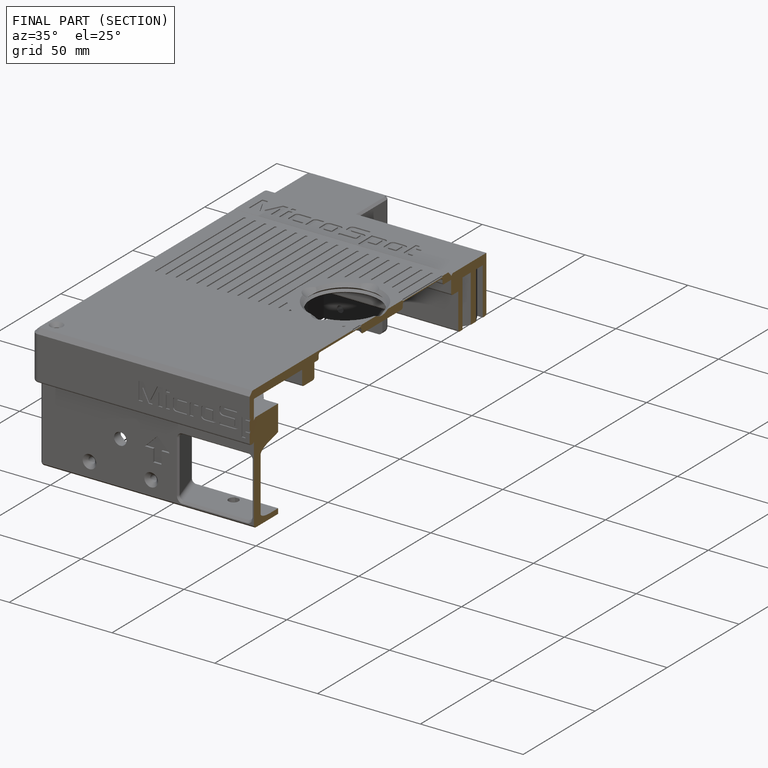
[diagram: finished part — half-section view (interior)]
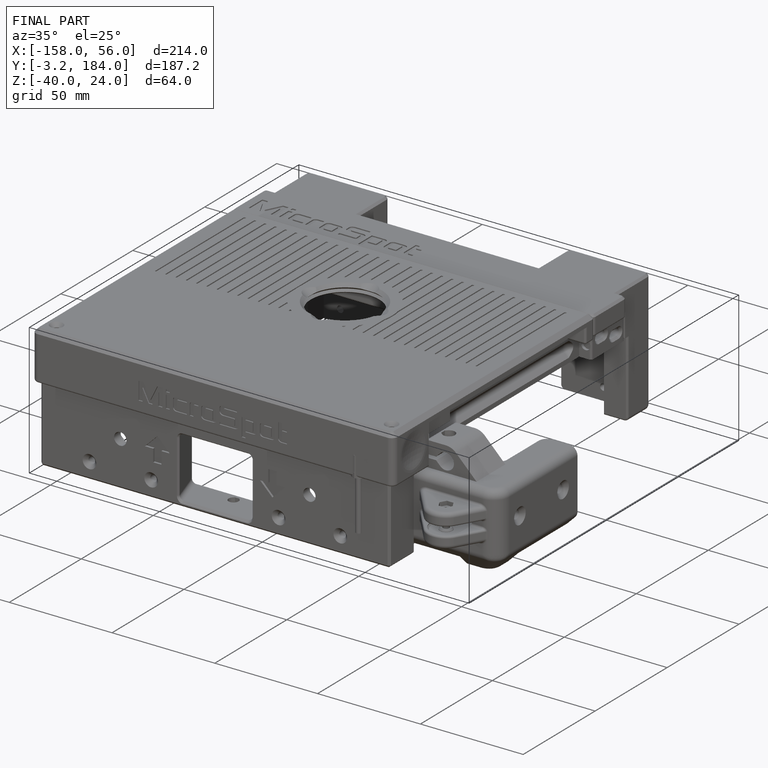
[diagram: finished part — iso view with bounding-box wireframe]
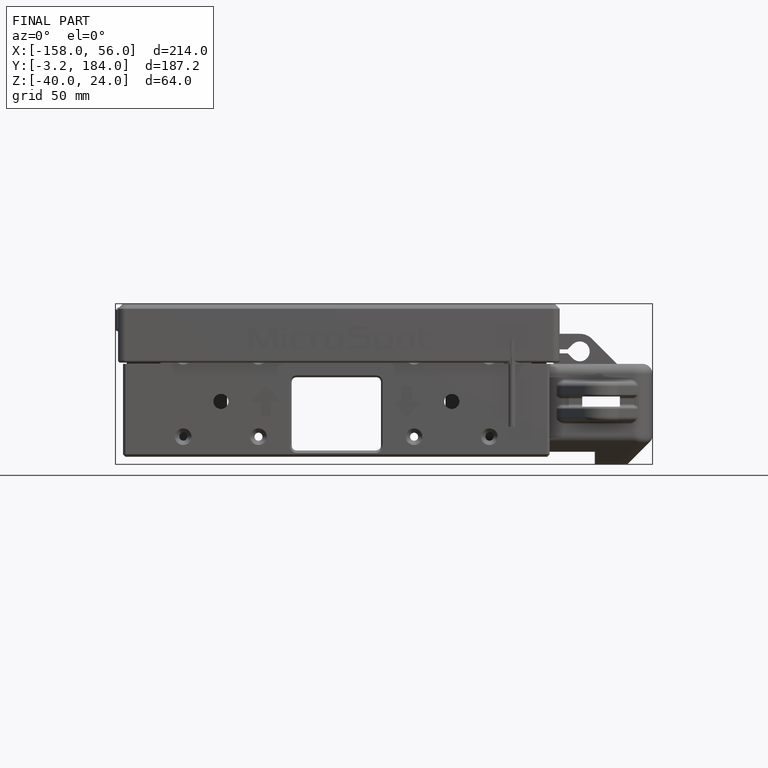
[diagram: finished part — front view with bounding-box wireframe]
